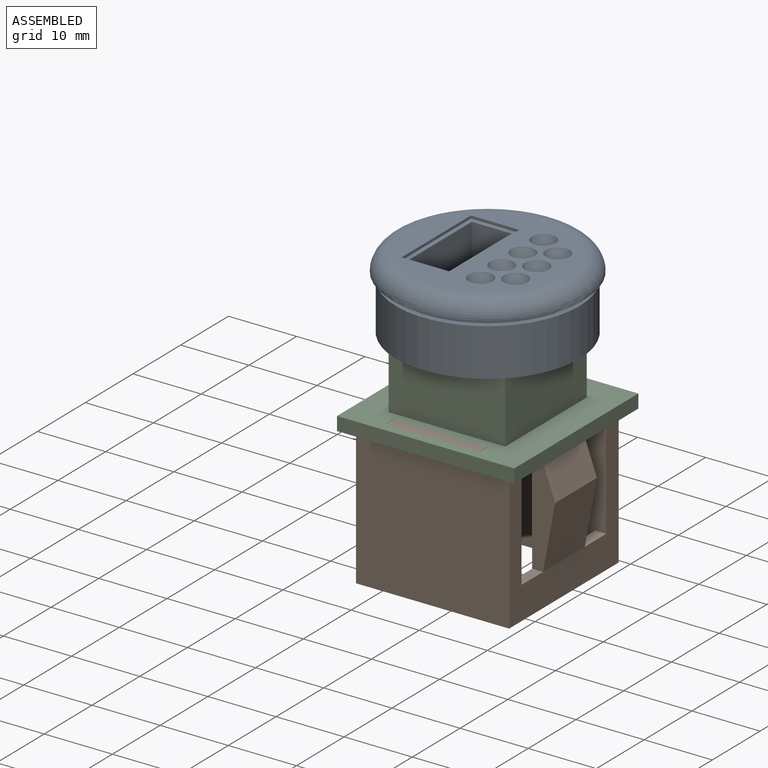
[diagram: assembled view]
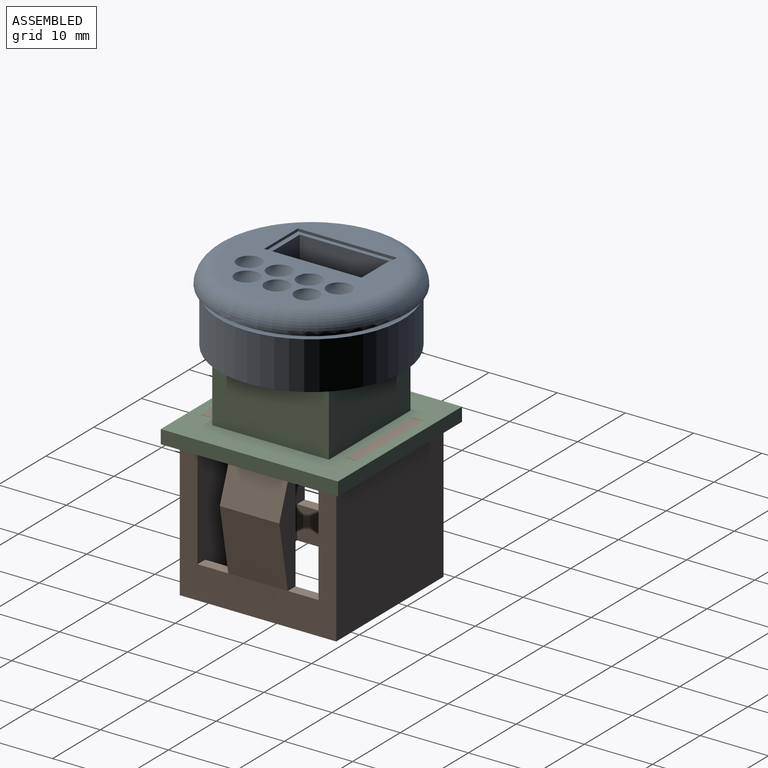
[diagram: assembled view, second angle]
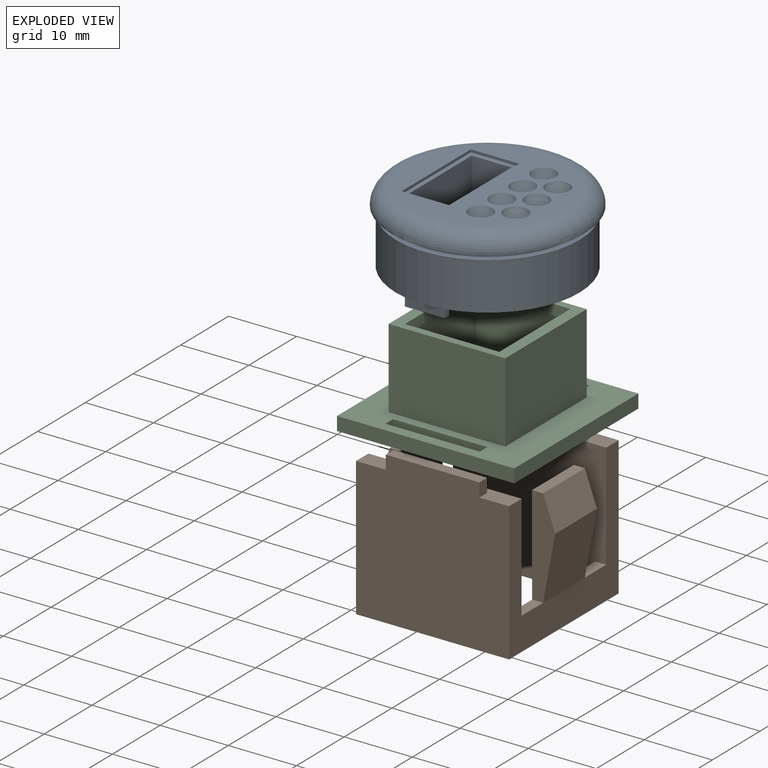
[diagram: exploded view]
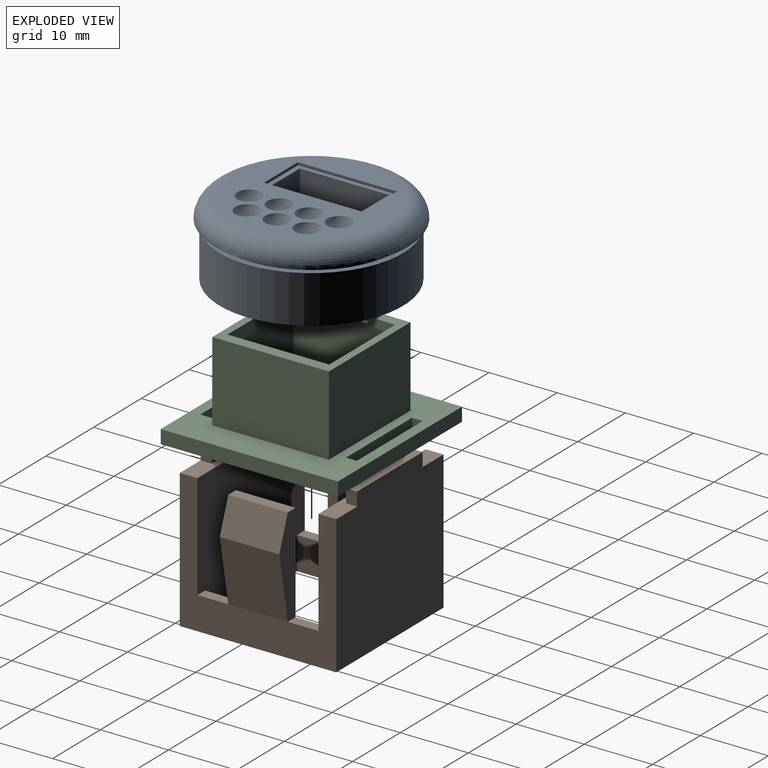
[diagram: exploded view, second angle]
ASSEMBLY  parts=3 mates=2
PART A: 45 faces, bbox 30.7x30.7x15.1 mm
  f0: plane 14.92x8mm, normal (0,0,-1), area 119.4mm2, adj f15,f32,f33,f36,f37,f42
  f1: plane 26.96x26.96mm, normal (0,0,-1), area 278.5mm2, adj f3,f39,f40,f41,f43
  f2: plane 23.15x23.15mm, normal (0,0,1), area 250.5mm2, adj f7,f8,f9,f10,f11,f24,f25,f26
  f3: cylinder r=13.48mm len=26.96mm, axis (0,0,-1), area 592.9mm2, adj f1,f4
  f4: plane 26.96x26.96mm, normal (0,0,1), area 72.1mm2, adj f3,f5
  f5: cylinder r=12.6mm len=25.2mm, axis (0,0,-1), area 79.2mm2, adj f4,f6
  f6: plane 28.35x28.35mm, normal (0,0,-1), area 132.5mm2, adj f5,f7
  f7: torus R=11.58mm, axis (0,0,1), area 339.5mm2, adj f2,f6
  f8: plane 14.52x0.4mm, normal (1,0,0), area 5.8mm2, adj f2,f9,f11,f12
  f9: plane 7.1x0.4mm, normal (0,1,0), area 2.8mm2, adj f2,f8,f10,f12
  f10: plane 14.52x0.4mm, normal (-1,0,0), area 5.8mm2, adj f2,f9,f11,f12
  f11: plane 7.1x0.4mm, normal (0,-1,0), area 2.8mm2, adj f2,f8,f10,f12
  f12: plane 14.52x7.1mm, normal (0,0,1), area 26.6mm2, adj f8,f9,f10,f11,f13,f14,f15,f16
  f13: plane 13.1x8.2mm, normal (1,0,0), area 107.4mm2, adj f12,f14,f16,f44
  f14: plane 14.65x5.84mm, normal (0,1,0), area 85.6mm2, adj f12,f13,f15,f31,f32,f34
  f15: plane 13.1x10.2mm, normal (-1,0,0), area 133.6mm2, adj f0,f12,f14,f16
  f16: plane 14.65x5.84mm, normal (0,-1,0), area 85.6mm2, adj f12,f13,f15,f35,f37,f38
  f17: plane 0.03x0.03mm, normal (0,0,1), area 0mm2, adj f30
  f18: plane 0.03x0.03mm, normal (0,0,1), area 0mm2, adj f24
  f19: plane 0.03x0.03mm, normal (0,0,1), area 0mm2, adj f25
  f20: plane 0.03x0.03mm, normal (0,0,1), area 0mm2, adj f29
  f21: plane 0.03x0.03mm, normal (0,0,1), area 0mm2, adj f28
  f22: plane 0.03x0.03mm, normal (0,0,1), area 0mm2, adj f27
  f23: plane 0.03x0.03mm, normal (0,0,1), area 0mm2, adj f26
  f24: torus R=0.01mm, axis (0,0,-1), area 15mm2, adj f2,f18
  f25: torus R=0.01mm, axis (0,0,-1), area 15mm2, adj f2,f19
  f26: torus R=0.01mm, axis (0,0,-1), area 15mm2, adj f2,f23
  f27: torus R=0.01mm, axis (0,0,-1), area 15mm2, adj f2,f22
  f28: torus R=0.01mm, axis (0,0,-1), area 15mm2, adj f2,f21
  f29: torus R=0.01mm, axis (0,0,-1), area 15mm2, adj f2,f20
  f30: torus R=0.01mm, axis (0,0,-1), area 15mm2, adj f2,f17
  f31: plane 6.45x0.91mm, normal (-1,0,0), area 5.9mm2, adj f14,f33,f34,f44
  f32: plane 4.45x0.91mm, normal (1,0,0), area 4mm2, adj f0,f14,f33,f34
  f33: plane 13.84x6.45mm, normal (0,-1,0), area 53.7mm2, adj f0,f31,f32,f34,f42,f44
  f34: plane 5.84x0.91mm, normal (0,0,-1), area 5.3mm2, adj f14,f31,f32,f33
  f35: plane 6.45x0.91mm, normal (-1,0,0), area 5.9mm2, adj f16,f36,f38,f44
  f36: plane 13.84x6.45mm, normal (0,1,0), area 53.7mm2, adj f0,f35,f37,f38,f42,f44
  f37: plane 4.45x0.91mm, normal (1,0,0), area 4mm2, adj f0,f16,f36,f38
  f38: plane 5.84x0.91mm, normal (0,0,-1), area 5.3mm2, adj f16,f35,f36,f37
  f39: plane 17.1x2mm, normal (0,1,0), area 34.2mm2, adj f1,f40,f43,f44
  f40: plane 17.1x2mm, normal (1,0,0), area 34.2mm2, adj f1,f39,f41,f44
  f41: plane 17.1x2mm, normal (0,-1,0), area 34.2mm2, adj f1,f40,f43,f44
  f42: plane 14.92x2mm, normal (1,0,0), area 29.8mm2, adj f0,f33,f36,f44
  f43: plane 17.1x2mm, normal (-1,0,0), area 34.2mm2, adj f1,f39,f41,f44
  f44: plane 17.1x17.1mm, normal (0,0,-1), area 85.9mm2, adj f13,f31,f33,f35,f36,f39,f40,f41
PART B: 33 faces, bbox 26x23x22.3 mm
  f0: plane 22.46x2.6mm, normal (0,0,1), area 36.4mm2, adj f1,f2,f6,f8,f25,f26,f27
  f1: plane 22.95x20.31mm, normal (-1,0,0), area 190.8mm2, adj f0,f3,f6,f7,f8,f9,f10,f16
  f2: plane 22.95x20.31mm, normal (1,0,0), area 190.8mm2, adj f0,f3,f6,f7,f8,f9,f10,f11
  f3: plane 22.46x2.6mm, normal (0,0,1), area 36.4mm2, adj f1,f2,f7,f9,f29,f30,f31
  f4: plane 19.31x17.75mm, normal (1,0,0), area 212mm2, adj f8,f9,f10,f16,f17,f18,f19,f20
  f5: plane 19.31x17.75mm, normal (-1,0,0), area 212mm2, adj f8,f9,f10,f11,f12,f13,f14,f15
  f6: plane 22.46x22.31mm, normal (0,1,0), area 483.6mm2, adj f0,f1,f2,f10,f25,f26,f28
  f7: plane 22.46x22.31mm, normal (0,-1,0), area 483.6mm2, adj f1,f2,f3,f10,f29,f30,f32
  f8: plane 22.46x20.31mm, normal (0,-1,0), area 440.8mm2, adj f0,f1,f2,f4,f5,f10,f15,f16
  f9: plane 22.46x20.31mm, normal (0,1,0), area 440.8mm2, adj f1,f2,f3,f4,f5,f10,f11,f20
  f10: plane 22.95x22.46mm, normal (0,0,-1), area 173.6mm2, adj f1,f2,f4,f5,f6,f7,f8,f9
  f11: plane 4.51x1.6mm, normal (0,0,1), area 7.2mm2, adj f2,f5,f9,f12
  f12: plane 14.51x3.38mm, normal (0,-1,0), area 36.1mm2, adj f5,f11,f13,f21,f22
  f13: plane 8.74x1.6mm, normal (0,0,1), area 14mm2, adj f5,f12,f14,f21
  f14: plane 14.51x3.38mm, normal (0,1,0), area 36.1mm2, adj f5,f13,f15,f21,f22
  f15: plane 4.51x1.6mm, normal (0,0,1), area 7.2mm2, adj f2,f5,f8,f14
  f16: plane 4.51x1.6mm, normal (0,0,1), area 7.2mm2, adj f1,f4,f8,f17
  f17: plane 14.51x3.38mm, normal (0,1,0), area 36.1mm2, adj f4,f16,f18,f23,f24
  f18: plane 8.74x1.6mm, normal (0,0,1), area 14mm2, adj f4,f17,f19,f23
  f19: plane 14.51x3.38mm, normal (0,-1,0), area 36.1mm2, adj f4,f18,f20,f23,f24
  f20: plane 4.51x1.6mm, normal (0,0,1), area 7.2mm2, adj f1,f4,f9,f19
  f21: plane 8.74x4.9mm, normal (0.94,0,0.34), area 45.6mm2, adj f12,f13,f14,f22
  f22: plane 9.61x8.74mm, normal (0.98,0,-0.18), area 85.4mm2, adj f2,f12,f14,f21
  f23: plane 8.74x4.9mm, normal (-0.94,0,0.34), area 45.6mm2, adj f17,f18,f19,f24
  f24: plane 9.61x8.74mm, normal (-0.98,0,-0.18), area 85.4mm2, adj f1,f17,f19,f23
  f25: plane 2x1.6mm, normal (1,0,0), area 3.2mm2, adj f0,f6,f27,f28
  f26: plane 2x1.6mm, normal (-1,0,0), area 3.2mm2, adj f0,f6,f27,f28
  f27: plane 13.74x2mm, normal (0,-1,0), area 27.5mm2, adj f0,f25,f26,f28
  f28: plane 13.74x1.6mm, normal (0,0,1), area 22mm2, adj f6,f25,f26,f27
  f29: plane 2x1.6mm, normal (1,0,0), area 3.2mm2, adj f3,f7,f31,f32
  f30: plane 2x1.6mm, normal (-1,0,0), area 3.2mm2, adj f3,f7,f31,f32
  f31: plane 13.74x2mm, normal (0,1,0), area 27.5mm2, adj f3,f29,f30,f32
  f32: plane 13.74x1.6mm, normal (0,0,1), area 22mm2, adj f7,f29,f30,f31
PART C: 27 faces, bbox 26x26x13.7 mm
  f0: plane 13.84x0.59mm, normal (0,0,1), area 8.2mm2, adj f3,f5,f18,f24
  f1: plane 13.84x0.59mm, normal (0,0,1), area 8.2mm2, adj f3,f4,f5,f23
  f2: plane 26x26mm, normal (0,0,1), area 339.3mm2, adj f6,f7,f8,f9,f10,f11,f12,f13
  f3: plane 14.92x13.7mm, normal (1,0,0), area 202mm2, adj f0,f1,f4,f18,f19,f23,f24,f26
  f4: plane 13.84x2mm, normal (0,-1,0), area 27.7mm2, adj f1,f3,f5,f19
  f5: plane 14.92x13.7mm, normal (-1,0,0), area 202mm2, adj f0,f1,f4,f18,f19,f23,f24,f26
  f6: plane 2x1.6mm, normal (-1,0,0), area 3.2mm2, adj f2,f7,f15,f19
  f7: plane 13.84x2mm, normal (0,1,0), area 27.7mm2, adj f2,f6,f8,f19
  f8: plane 2x1.6mm, normal (1,0,0), area 3.2mm2, adj f2,f7,f15,f19
  f9: plane 26x2mm, normal (-1,0,0), area 52mm2, adj f2,f10,f16,f19
  f10: plane 26x2mm, normal (0,-1,0), area 52mm2, adj f2,f9,f11,f19
  f11: plane 26x2mm, normal (1,0,0), area 52mm2, adj f2,f10,f16,f19
  f12: plane 2x1.6mm, normal (-1,0,0), area 3.2mm2, adj f2,f13,f17,f19
  f13: plane 13.84x2mm, normal (0,1,0), area 27.7mm2, adj f2,f12,f14,f19
  f14: plane 2x1.6mm, normal (1,0,0), area 3.2mm2, adj f2,f13,f17,f19
  f15: plane 13.84x2mm, normal (0,-1,0), area 27.7mm2, adj f2,f6,f8,f19
  f16: plane 26x2mm, normal (0,1,0), area 52mm2, adj f2,f9,f11,f19
  f17: plane 13.84x2mm, normal (0,-1,0), area 27.7mm2, adj f2,f12,f14,f19
  f18: plane 13.84x2mm, normal (0,1,0), area 27.7mm2, adj f0,f3,f5,f19
  f19: plane 26x26mm, normal (0,0,-1), area 441.6mm2, adj f3,f4,f5,f6,f7,f8,f9,f10
  f20: plane 17.1x11.7mm, normal (0,1,0), area 200.1mm2, adj f2,f21,f25,f26
  f21: plane 17.1x11.7mm, normal (-1,0,0), area 200.1mm2, adj f2,f20,f22,f26
  f22: plane 17.1x11.7mm, normal (0,-1,0), area 200.1mm2, adj f2,f21,f25,f26
  f23: plane 13.84x11.7mm, normal (0,-1,0), area 161.9mm2, adj f1,f3,f5,f26
  f24: plane 13.84x11.7mm, normal (0,1,0), area 161.9mm2, adj f0,f3,f5,f26
  f25: plane 17.1x11.7mm, normal (1,0,0), area 200.1mm2, adj f2,f20,f22,f26
  f26: plane 17.1x17.1mm, normal (0,0,1), area 85.9mm2, adj f3,f5,f20,f21,f22,f23,f24,f25
PLACE A t=(0.05,0,32.01)mm
PLACE B at identity
PLACE C t=(0.05,0,0)mm
MATE fastened C.f26 <-> A.f3  axis (0,0,1) through (0.05,0,34.01)mm
MATE fastened B.f32 <-> C.f2  axis (0,0,1) through (0,-10.67,22.31)mm
